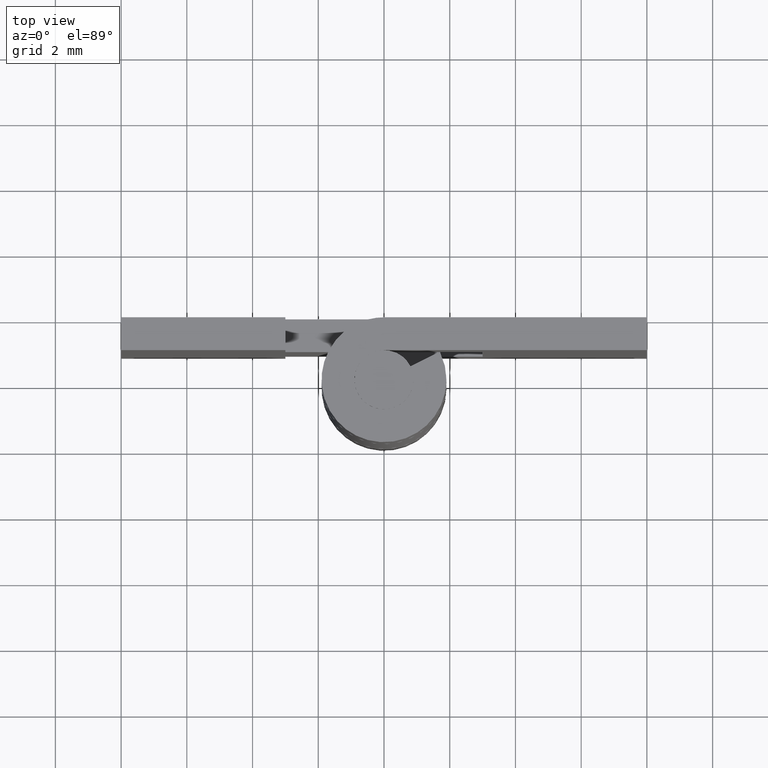
[diagram: clean part render]
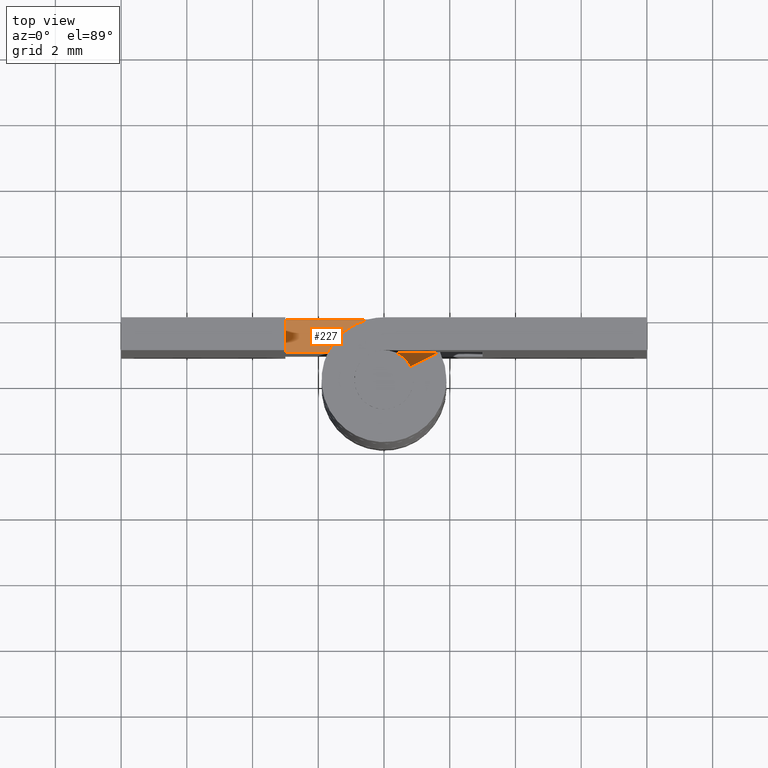
[diagram: same view with one face highlighted and labeled with its STEP entity id]
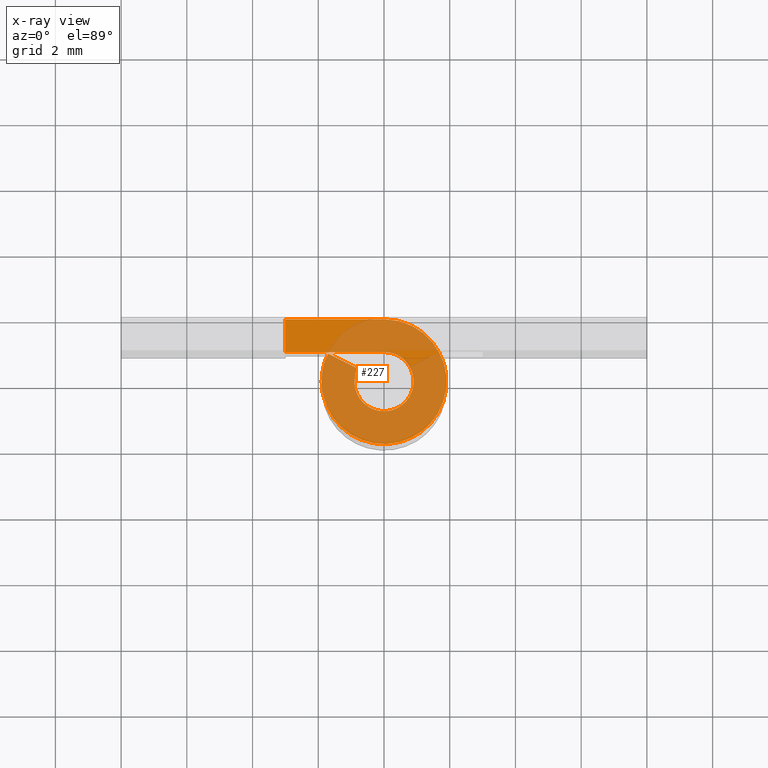
[diagram: x-ray of the same camera — body ghosted, the highlighted face saturated]
A machine part, top view. The second image highlights one B-rep face of the part: STEP entity #227.
The next image is the same camera in x-ray: the body ghosted, the highlighted face saturated — about 78% of this face is hidden behind the body in this view.
In plain terms, the highlighted face is a freeform B-spline surface patch.
Its self-contained STEP definition (entity closure, byte-faithful):
#150=CARTESIAN_POINT('',(-3.244739824334106,-2.088529147991931,11.500000000000000));
#151=CARTESIAN_POINT('',(2.144436328740537,-2.088529147991931,11.500000000000000));
#152=CARTESIAN_POINT('',(-3.244739824334106,2.089751255164639,11.500000000000000));
#153=CARTESIAN_POINT('',(2.144436328740537,2.089751255164639,11.500000000000000));
#154=B_SPLINE_SURFACE_WITH_KNOTS('',1,1,((#150,#152),(#151,#153)),.UNSPECIFIED.,.F.,.F.,.U.,(2,2),(2,2),(0.0,5.389176153074644),(0.0,4.178280403156570),.UNSPECIFIED.);
#155=CARTESIAN_POINT('',(-3.0,1.900001999999955,11.500000000000000));
#156=VERTEX_POINT('',#155);
#157=CARTESIAN_POINT('',(0.0,1.900001999999955,11.500000000000000));
#158=VERTEX_POINT('',#157);
#159=CARTESIAN_POINT('',(-3.0,1.900001999999955,11.500000000000000));
#160=CARTESIAN_POINT('',(0.0,1.900001999999955,11.500000000000000));
#161=QUASI_UNIFORM_CURVE('',1,(#159,#160),.UNSPECIFIED.,.F.,.U.);
#162=EDGE_CURVE('',#156,#158,#161,.T.);
#163=ORIENTED_EDGE('',*,*,#162,.F.);
#164=CARTESIAN_POINT('',(-3.0,0.900001999999955,11.500000000000000));
#165=VERTEX_POINT('',#164);
#166=CARTESIAN_POINT('',(-3.0,0.900001999999955,11.500000000000000));
#167=CARTESIAN_POINT('',(-3.0,1.900001999999955,11.500000000000000));
#168=QUASI_UNIFORM_CURVE('',1,(#166,#167),.UNSPECIFIED.,.F.,.U.);
#169=EDGE_CURVE('',#165,#156,#168,.T.);
#170=ORIENTED_EDGE('',*,*,#169,.F.);
#171=CARTESIAN_POINT('',(5.511008E-017,0.900002000000000,11.500000000000000));
#172=VERTEX_POINT('',#171);
#173=CARTESIAN_POINT('',(5.511008E-017,0.900002000000000,11.500000000000000));
#174=CARTESIAN_POINT('',(-3.0,0.900001999999955,11.500000000000000));
#175=QUASI_UNIFORM_CURVE('',1,(#173,#174),.UNSPECIFIED.,.F.,.U.);
#176=EDGE_CURVE('',#172,#165,#175,.T.);
#177=ORIENTED_EDGE('',*,*,#176,.F.);
#178=CARTESIAN_POINT('',(-0.804916100133275,0.402633421054737,11.500000000000000));
#179=VERTEX_POINT('',#178);
#180=CARTESIAN_POINT('',(0.0,0.900002000000000,11.500000000000000));
#181=CARTESIAN_POINT('',(0.679972056920630,0.900002000000000,11.500000000000000));
#182=CARTESIAN_POINT('',(0.865757160973812,0.245902700730523,11.500000000000000));
#183=CARTESIAN_POINT('',(1.051542265026994,-0.408196598538954,11.500000000000000));
#184=CARTESIAN_POINT('',(0.473092335484255,-0.765628658103948,11.500000000000000));
#185=CARTESIAN_POINT('',(-0.105357594058483,-1.123060717668942,11.500000000000000));
#186=CARTESIAN_POINT('',(-0.607236217708155,-0.664279892746645,11.500000000000000));
#187=CARTESIAN_POINT('',(-1.109114841357827,-0.205499067824348,11.500000000000000));
#188=CARTESIAN_POINT('',(-0.804916100133274,0.402633421054738,11.500000000000000));
#196=(BOUNDED_CURVE()B_SPLINE_CURVE(2,(#180,#181,#182,#183,#184,#185,#186,#187,#188),.UNSPECIFIED.,.F.,.U.)B_SPLINE_CURVE_WITH_KNOTS((3,2,2,2,3),(0.0,0.250000000000000,0.500000000000000,0.750000000000000,1.0),.UNSPECIFIED.)CURVE()GEOMETRIC_REPRESENTATION_ITEM()RATIONAL_B_SPLINE_CURVE((1.0,0.797879883149118,1.0,0.797879883149118,1.0,0.797879883149118,1.0,0.797879883149118,1.0))REPRESENTATION_ITEM(''));
#197=EDGE_CURVE('',#172,#179,#196,.T.);
#198=ORIENTED_EDGE('',*,*,#197,.T.);
#199=CARTESIAN_POINT('',(-1.699265335060835,0.850002894738948,11.500000000000000));
#200=VERTEX_POINT('',#199);
#201=CARTESIAN_POINT('',(-1.699265335060835,0.850002894738948,11.500000000000000));
#202=CARTESIAN_POINT('',(-0.804916100133275,0.402633421054737,11.500000000000000));
#203=QUASI_UNIFORM_CURVE('',1,(#201,#202),.UNSPECIFIED.,.F.,.U.);
#204=EDGE_CURVE('',#200,#179,#203,.T.);
#205=ORIENTED_EDGE('',*,*,#204,.F.);
#206=CARTESIAN_POINT('',(0.0,1.900001999999955,11.500000000000000));
#207=CARTESIAN_POINT('',(1.435494885670600,1.900002000000000,11.500000000000000));
#208=CARTESIAN_POINT('',(1.827707424388573,0.519127316598625,11.500000000000000));
#209=CARTESIAN_POINT('',(2.219919963106547,-0.861747366802750,11.500000000000000));
#210=CARTESIAN_POINT('',(0.998749317895690,-1.616325276671405,11.500000000000000));
#211=CARTESIAN_POINT('',(-0.222421327315167,-2.370903186540059,11.500000000000000));
#212=CARTESIAN_POINT('',(-1.281941626927417,-1.402367022271519,11.500000000000000));
#213=CARTESIAN_POINT('',(-2.341461926539666,-0.433830858002980,11.500000000000000));
#214=CARTESIAN_POINT('',(-1.699265335060835,0.850002894738946,11.500000000000000));
#222=(BOUNDED_CURVE()B_SPLINE_CURVE(2,(#206,#207,#208,#209,#210,#211,#212,#213,#214),.UNSPECIFIED.,.F.,.U.)B_SPLINE_CURVE_WITH_KNOTS((3,2,2,2,3),(0.0,0.250000000000000,0.500000000000000,0.750000000000000,1.0),.UNSPECIFIED.)CURVE()GEOMETRIC_REPRESENTATION_ITEM()RATIONAL_B_SPLINE_CURVE((1.0,0.797879883149118,1.0,0.797879883149118,1.0,0.797879883149118,1.0,0.797879883149118,1.0))REPRESENTATION_ITEM(''));
#223=EDGE_CURVE('',#158,#200,#222,.T.);
#224=ORIENTED_EDGE('',*,*,#223,.F.);
#225=EDGE_LOOP('',(#163,#170,#177,#198,#205,#224));
#226=FACE_OUTER_BOUND('',#225,.T.);
#227=ADVANCED_FACE('',(#226),#154,.T.);